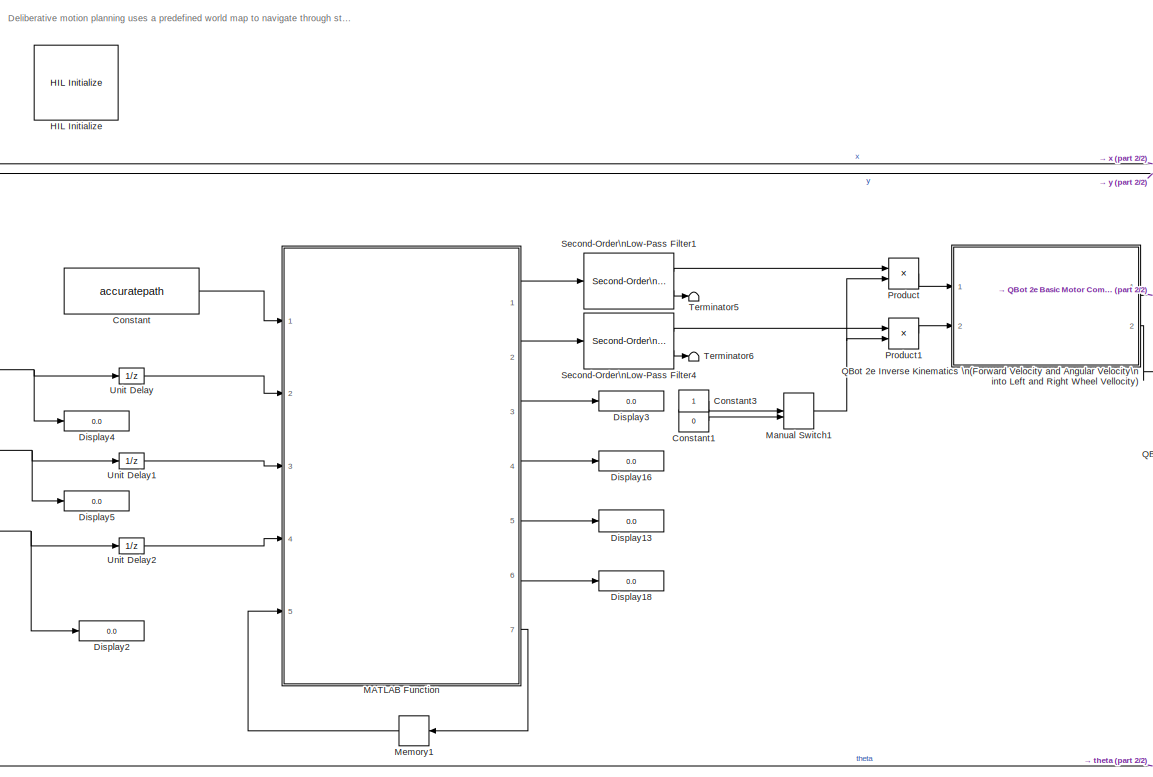
[diagram: root canvas - part 1/2, center side, full height]
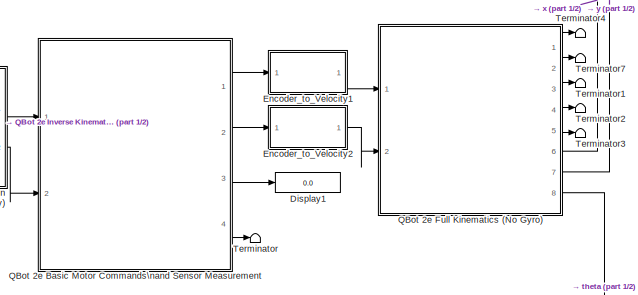
[diagram: root canvas - part 2/2, middle right region]
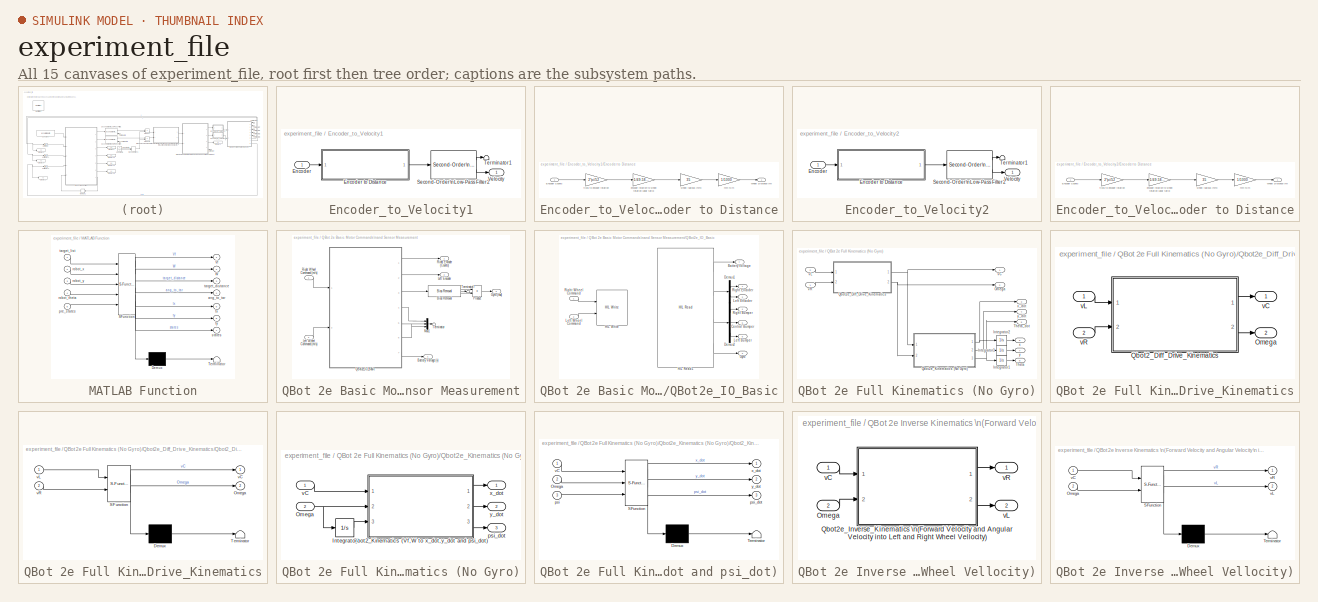
[diagram: thumbnail index - all 15 canvases of the model, root first then tree order]
MODEL experiment_file
KIND model
BLOCK [Constant] Constant
  SID = 679
  Value = accuratepath
BLOCK [Constant] Constant1
  SID = 412
  Value = 0
BLOCK [Constant] Constant3
  SID = 414
BLOCK [Display] Display1
  Ports = [1]
  SID = 416
BLOCK [Display] Display13
  Decimation = 1
  Ports = [1]
  SID = 554
BLOCK [Display] Display16
  Decimation = 1
  Ports = [1]
  SID = 555
BLOCK [Display] Display18
  Decimation = 1
  Ports = [1]
  SID = 556
BLOCK [Display] Display2
  Ports = [1]
  SID = 682
BLOCK [Display] Display3
  Decimation = 1
  Ports = [1]
  SID = 557
BLOCK [Display] Display4
  Ports = [1]
  SID = 683
BLOCK [Display] Display5
  Ports = [1]
  SID = 684
BLOCK [SubSystem] Encoder_to_Velocity1
  Ports = [1, 1]
  RequestExecContextInheritance = off
  SID = 427
BLOCK [Inport] Encoder_to_Velocity1/Encoder
  IconDisplay = Port number
  SID = 428
BLOCK [SubSystem] Encoder_to_Velocity1/Encoder to Distance
  Ports = [1, 1]
  RequestExecContextInheritance = off
  SID = 429
BLOCK [Gain] Encoder_to_Velocity1/Encoder to Distance/ encoder rotation to wheel rotation (gear ratio)
  Gain = 1/49.5833
  OutDataTypeStr = Inherit: Inherit via internal rule
  ParamDataTypeStr = Inherit: Inherit via internal rule
  SID = 431
  SaturateOnIntegerOverflow = off
BLOCK [Inport] Encoder_to_Velocity1/Encoder to Distance/Encoder Counts
  IconDisplay = Port number
  SID = 430
BLOCK [Outport] Encoder_to_Velocity1/Encoder to Distance/Wheel Distance (m)
  IconDisplay = Port number
  SID = 435
BLOCK [Gain] Encoder_to_Velocity1/Encoder to Distance/mm to m
  Gain = 1/1000
  OutDataTypeStr = Inherit: Inherit via internal rule
  ParamDataTypeStr = Inherit: Inherit via internal rule
  SID = 432
  SaturateOnIntegerOverflow = off
BLOCK [Gain] Encoder_to_Velocity1/Encoder to Distance/ticks to encoder rotation
  Gain = 2*pi/52
  OutDataTypeStr = Inherit: Inherit via internal rule
  ParamDataTypeStr = Inherit: Inherit via internal rule
  SID = 433
  SaturateOnIntegerOverflow = off
BLOCK [Gain] Encoder_to_Velocity1/Encoder to Distance/wheel radious (mm)
  Gain = 35
  OutDataTypeStr = Inherit: Inherit via internal rule
  ParamDataTypeStr = Inherit: Inherit via internal rule
  SID = 434
  SaturateOnIntegerOverflow = off
BLOCK [Reference] Encoder_to_Velocity1/Second-Order\nLow-Pass Filter2  REF=quarc_library/Continuous/Second-Order\nLow-Pass Filter
  Ports = [1, 2]
  SID = 436
  SourceBlock = quarc_library/Continuous/Second-Order\nLow-Pass Filter
  SourceProductName = QUARC Targets
  SourceType = Second-Order Low-Pass Filter
  input_init = 0
  input_width = 10
  input_zeta = 1
  params_source = Internal (dialog parameters)
BLOCK [Terminator] Encoder_to_Velocity1/Terminator1
  SID = 437
BLOCK [Outport] Encoder_to_Velocity1/Velocity
  IconDisplay = Port number
  SID = 438
BLOCK [SubSystem] Encoder_to_Velocity2
  Ports = [1, 1]
  RequestExecContextInheritance = off
  SID = 439
BLOCK [Inport] Encoder_to_Velocity2/Encoder
  IconDisplay = Port number
  SID = 440
BLOCK [SubSystem] Encoder_to_Velocity2/Encoder to Distance
  Ports = [1, 1]
  RequestExecContextInheritance = off
  SID = 441
BLOCK [Gain] Encoder_to_Velocity2/Encoder to Distance/ encoder rotation to wheel rotation (gear ratio)
  Gain = 1/49.5833
  OutDataTypeStr = Inherit: Inherit via internal rule
  ParamDataTypeStr = Inherit: Inherit via internal rule
  SID = 443
  SaturateOnIntegerOverflow = off
BLOCK [Inport] Encoder_to_Velocity2/Encoder to Distance/Encoder Counts
  IconDisplay = Port number
  SID = 442
BLOCK [Outport] Encoder_to_Velocity2/Encoder to Distance/Wheel Distance (m)
  IconDisplay = Port number
  SID = 447
BLOCK [Gain] Encoder_to_Velocity2/Encoder to Distance/mm to m
  Gain = 1/1000
  OutDataTypeStr = Inherit: Inherit via internal rule
  ParamDataTypeStr = Inherit: Inherit via internal rule
  SID = 444
  SaturateOnIntegerOverflow = off
BLOCK [Gain] Encoder_to_Velocity2/Encoder to Distance/ticks to encoder rotation
  Gain = 2*pi/52
  OutDataTypeStr = Inherit: Inherit via internal rule
  ParamDataTypeStr = Inherit: Inherit via internal rule
  SID = 445
  SaturateOnIntegerOverflow = off
BLOCK [Gain] Encoder_to_Velocity2/Encoder to Distance/wheel radious (mm)
  Gain = 35
  OutDataTypeStr = Inherit: Inherit via internal rule
  ParamDataTypeStr = Inherit: Inherit via internal rule
  SID = 446
  SaturateOnIntegerOverflow = off
BLOCK [Reference] Encoder_to_Velocity2/Second-Order\nLow-Pass Filter2  REF=quarc_library/Continuous/Second-Order\nLow-Pass Filter
  Ports = [1, 2]
  SID = 448
  SourceBlock = quarc_library/Continuous/Second-Order\nLow-Pass Filter
  SourceProductName = QUARC Targets
  SourceType = Second-Order Low-Pass Filter
  input_init = 0
  input_width = 10
  input_zeta = 1
  params_source = Internal (dialog parameters)
BLOCK [Terminator] Encoder_to_Velocity2/Terminator1
  SID = 449
BLOCK [Outport] Encoder_to_Velocity2/Velocity
  IconDisplay = Port number
  SID = 450
BLOCK [Reference] HIL Initialize  REF=quarc_library/Data Acquisition/Generic/Configuration/HIL Initialize
  AttributesFormatString = %<object_name> (%<board_type>-%<board_number>)
  MultiThreadCoSim = auto
  Ports = []
  Priority = -99
  SID = 367
  SourceBlock = quarc_library/Data Acquisition/Generic/Configuration/HIL Initialize
  SourceProductName = QUARC Targets
  SourceType = HIL Initialize
  UserData = DataTag0
  UserDataPersistent = on
  active = off
  analog_input_channels = [0:5]
  analog_input_configurations = []
  analog_input_maximums = [16.5 3.3 3.3 3.3 3.3 3.3]
  analog_input_minimums = [0 0 0 0 0 0]
  analog_output_channels = []
  analog_output_maximums = []
  analog_output_minimums = []
  board_number = 0
  board_options = pwm0_en=1;pwm0_pin=12;pwm1_en=1;pwm1_pin=13;
  board_type = qbot2e
  clock_modes = []
  digital_input_channels = [28:58]
  digital_output_channels = [28:31]
  digital_output_configuration = []
  encoder_channels = [0:1]
  encoder_filter_frequency = []
  exclusive = off
  final_analog_outputs = []
  final_digital_outputs = [0]
  final_other_outputs = [0 0 0 7]
  final_pwm_outputs = [0]
  hardware_clocks = []
  initial_analog_outputs = []
  initial_clock_frequencies = []
  initial_digital_outputs = [0]
  initial_encoder_counts = [0]
  initial_other_outputs = [0 0 0 7]
  initial_pwm_outputs = [0]
  object_name = HIL-1
  other_output_channels = [2000:2001 14000 16000]
  pwm_alignment = [0]
  pwm_channels = [0:1]
  pwm_configuration = [0]
  pwm_frequency = 100e6 / 4095
  pwm_leading_deadband = []
  pwm_modes = 0
  pwm_polarity = [1]
  pwm_trailing_deadband = []
  quadrature = [4]
  set_analog_input_params_at_start = off
  set_analog_input_params_at_switch_in = off
  set_analog_output_params_at_start = off
  set_analog_output_params_at_switch_in = off
  set_analog_outputs_at_start = off
  set_analog_outputs_at_switch_in = off
  set_analog_outputs_at_switch_out = off
  set_analog_outputs_at_terminate = off
  set_analog_outputs_on_watchdog = off
  set_clock_frequencies_at_start = off
  set_clock_frequencies_at_switch_in = off
  set_clock_params_at_start = off
  set_clock_params_at_switch_in = off
  set_digital_output_params_at_start = off
  set_digital_output_params_at_switch_in = off
  set_digital_outputs_at_start = on
  set_digital_outputs_at_switch_in = off
  set_digital_outputs_at_switch_out = off
  set_digital_outputs_at_terminate = on
  set_digital_outputs_on_watchdog = off
  set_encoder_counts_at_start = on
  set_encoder_counts_at_switch_in = off
  set_encoder_params_at_start = on
  set_encoder_params_at_switch_in = off
  set_other_outputs_at_start = on
  set_other_outputs_at_switch_in = off
  set_other_outputs_at_switch_out = off
  set_other_outputs_at_terminate = on
  set_other_outputs_on_watchdog = off
  set_pwm_outputs_at_start = on
  set_pwm_outputs_at_switch_in = off
  set_pwm_outputs_at_switch_out = off
  set_pwm_outputs_at_terminate = on
  set_pwm_outputs_on_watchdog = off
  set_pwm_params_at_start = on
  set_pwm_params_at_switch_in = off
  watchdog_analog_outputs = []
  watchdog_digital_outputs = []
  watchdog_other_outputs = []
  watchdog_pwm_outputs = []
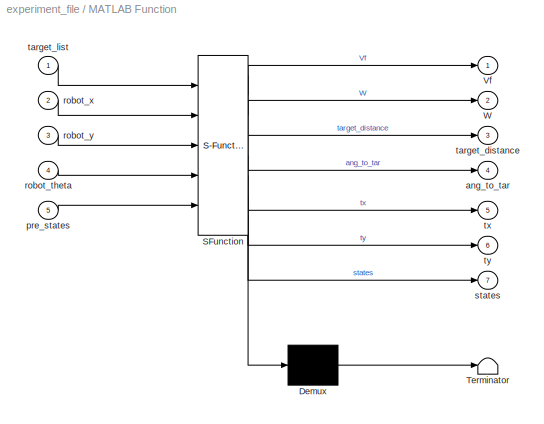
BLOCK [SubSystem] MATLAB Function
  ErrorFcn = Stateflow.Translate.translate
  PermitHierarchicalResolution = ExplicitOnly
  Ports = [5, 7]
  RequestExecContextInheritance = off
  SFBlockType = MATLAB Function
  SID = 676
  TreatAsAtomicUnit = on
BLOCK [Demux] MATLAB Function/ Demux 
  Outputs = 1
  Ports = [1, 1]
  SID = 676::32
BLOCK [S-Function] MATLAB Function/ SFunction 
  EnableBusSupport = on
  FunctionName = sf_sfun
  PortCounts = [5 8]
  Ports = [5, 8]
  SFcnIsStateOwnerBlock = off
  SFunctionDeploymentMode = off
  SID = 676::31
  Tag = Stateflow S-Function experiment_file 4
BLOCK [Terminator] MATLAB Function/ Terminator 
  SID = 676::33
BLOCK [Outport] MATLAB Function/Vf
  IconDisplay = Port number
  SID = 676::5
BLOCK [Outport] MATLAB Function/W
  IconDisplay = Port number
  Port = 2
  SID = 676::23
BLOCK [Outport] MATLAB Function/ang_to_tar
  IconDisplay = Port number
  Port = 4
  SID = 676::25
BLOCK [Inport] MATLAB Function/pre_states
  IconDisplay = Port number
  Port = 5
  SID = 676::22
BLOCK [Inport] MATLAB Function/robot_theta
  IconDisplay = Port number
  Port = 4
  SID = 676::29
BLOCK [Inport] MATLAB Function/robot_x
  IconDisplay = Port number
  Port = 2
  SID = 676::21
BLOCK [Inport] MATLAB Function/robot_y
  IconDisplay = Port number
  Port = 3
  SID = 676::28
BLOCK [Outport] MATLAB Function/states
  IconDisplay = Port number
  Port = 7
  SID = 676::27
BLOCK [Outport] MATLAB Function/target_distance
  IconDisplay = Port number
  Port = 3
  SID = 676::24
BLOCK [Inport] MATLAB Function/target_list
  IconDisplay = Port number
  SID = 676::1
BLOCK [Outport] MATLAB Function/tx
  IconDisplay = Port number
  Port = 5
  SID = 676::26
BLOCK [Outport] MATLAB Function/ty
  IconDisplay = Port number
  Port = 6
  SID = 676::30
BLOCK [ManualSwitch] Manual Switch1
  SID = 681
BLOCK [Memory] Memory1
  InitialCondition = [1]
  SID = 678
BLOCK [Product] Product
  InputSameDT = off
  OutDataTypeStr = Inherit: Inherit via internal rule
  Ports = [2, 1]
  SID = 458
  SaturateOnIntegerOverflow = off
BLOCK [Product] Product1
  InputSameDT = off
  OutDataTypeStr = Inherit: Inherit via internal rule
  Ports = [2, 1]
  SID = 459
  SaturateOnIntegerOverflow = off
BLOCK [SubSystem] QBot 2e Basic Motor Commands\nand Sensor Measurement
  Ports = [2, 4]
  RequestExecContextInheritance = off
  SID = 629
BLOCK [Outport] QBot 2e Basic Motor Commands\nand Sensor Measurement/Battery Voltage (v)
  IconDisplay = Port number
  Port = 4
  SID = 654
BLOCK [Reference] QBot 2e Basic Motor Commands\nand Sensor Measurement/Bias Removal  REF=quarc_library/Discrete/Bias Removal
  Ports = [1, 3]
  SID = 632
  SourceBlock = quarc_library/Discrete/Bias Removal
  SourceProductName = QUARC Targets
  SourceType = Bias Removal
  end_time = 4
  sample_time = qc_get_step_size
  start_time = 3
  switch_id = 0
BLOCK [Outport] QBot 2e Basic Motor Commands\nand Sensor Measurement/Gyro (rad)
  IconDisplay = Port number
  Port = 3
  SID = 653
BLOCK [Outport] QBot 2e Basic Motor Commands\nand Sensor Measurement/Left Encoder
  IconDisplay = Port number
  Port = 2
  SID = 652
BLOCK [Inport] QBot 2e Basic Motor Commands\nand Sensor Measurement/Left Wheel Command (m//s)
  IconDisplay = Port number
  Port = 2
  SID = 631
BLOCK [Mux] QBot 2e Basic Motor Commands\nand Sensor Measurement/Mux1
  DisplayOption = bar
  Inputs = 3
  Ports = [3, 1]
  SID = 633
BLOCK [Product] QBot 2e Basic Motor Commands\nand Sensor Measurement/Product
  InputSameDT = off
  OutDataTypeStr = Inherit: Inherit via internal rule
  Ports = [2, 1]
  SID = 634
  SaturateOnIntegerOverflow = off
BLOCK [SubSystem] QBot 2e Basic Motor Commands\nand Sensor Measurement/QBot2e_IO_Basic
  Ports = [2, 7]
  RequestExecContextInheritance = off
  SID = 635
BLOCK [Outport] QBot 2e Basic Motor Commands\nand Sensor Measurement/QBot2e_IO_Basic/Battery Voltage
  IconDisplay = Port number
  Port = 7
  SID = 648
BLOCK [Outport] QBot 2e Basic Motor Commands\nand Sensor Measurement/QBot2e_IO_Basic/Central Bumper
  IconDisplay = Port number
  Port = 5
  SID = 646
BLOCK [Demux] QBot 2e Basic Motor Commands\nand Sensor Measurement/QBot2e_IO_Basic/Demux1
  DisplayOption = bar
  Outputs = 2
  Ports = [1, 2]
  SID = 638
BLOCK [Demux] QBot 2e Basic Motor Commands\nand Sensor Measurement/QBot2e_IO_Basic/Demux2
  DisplayOption = bar
  Outputs = 3
  Ports = [1, 3]
  SID = 639
BLOCK [Outport] QBot 2e Basic Motor Commands\nand Sensor Measurement/QBot2e_IO_Basic/Gyro
  IconDisplay = Port number
  Port = 3
  SID = 644
BLOCK [Reference] QBot 2e Basic Motor Commands\nand Sensor Measurement/QBot2e_IO_Basic/HIL Read1  REF=quarc_library/Data Acquisition/Generic/Immediate I//O/HIL Read
  AttributesFormatString = (%<object_name>)
  MultiThreadCoSim = auto
  Ports = [0, 4]
  SID = 640
  SourceBlock = quarc_library/Data Acquisition/Generic/Immediate I//O/HIL Read
  SourceProductName = QUARC Targets
  SourceType = HIL Read
  UserData = DataTag1
  UserDataPersistent = on
  active = on
  analog_channels = [0]
  data_type_mode = Inherit via back propagation
  digital_channels = [28:30]
  digital_data_type = boolean
  encoder_channels = [0:1]
  encoder_data_type = double
  object_name = HIL-1
  other_channels = [1002]
  sample_time = qc_get_step_size
  vector_output = on
BLOCK [Reference] QBot 2e Basic Motor Commands\nand Sensor Measurement/QBot2e_IO_Basic/HIL Write  REF=quarc_library/Data Acquisition/Generic/Immediate I//O/HIL Write
  AttributesFormatString = (%<object_name>)
  MultiThreadCoSim = auto
  Ports = [2]
  SID = 641
  SourceBlock = quarc_library/Data Acquisition/Generic/Immediate I//O/HIL Write
  SourceProductName = QUARC Targets
  SourceType = HIL Write
  UserData = DataTag2
  UserDataPersistent = on
  active = on
  analog_channels = []
  digital_channels = []
  object_name = HIL-1
  other_channels = [2000:2001]
  pwm_channels = []
  sample_time = -1
  vector_input = off
BLOCK [Outport] QBot 2e Basic Motor Commands\nand Sensor Measurement/QBot2e_IO_Basic/Left Bumper
  IconDisplay = Port number
  Port = 6
  SID = 647
BLOCK [Outport] QBot 2e Basic Motor Commands\nand Sensor Measurement/QBot2e_IO_Basic/Left Encoder
  IconDisplay = Port number
  Port = 2
  SID = 643
BLOCK [Inport] QBot 2e Basic Motor Commands\nand Sensor Measurement/QBot2e_IO_Basic/Left Wheel Command
  IconDisplay = Port number
  Port = 2
  SID = 637
BLOCK [Outport] QBot 2e Basic Motor Commands\nand Sensor Measurement/QBot2e_IO_Basic/Right Bumper
  IconDisplay = Port number
  Port = 4
  SID = 645
BLOCK [Outport] QBot 2e Basic Motor Commands\nand Sensor Measurement/QBot2e_IO_Basic/Right Encoder
  IconDisplay = Port number
  SID = 642
BLOCK [Inport] QBot 2e Basic Motor Commands\nand Sensor Measurement/QBot2e_IO_Basic/Right Wheel Command
  IconDisplay = Port number
  SID = 636
BLOCK [Outport] QBot 2e Basic Motor Commands\nand Sensor Measurement/Right Encoder (Counts)
  IconDisplay = Port number
  SID = 651
BLOCK [Inport] QBot 2e Basic Motor Commands\nand Sensor Measurement/Right Wheel Command (m//s)
  IconDisplay = Port number
  SID = 630
BLOCK [Terminator] QBot 2e Basic Motor Commands\nand Sensor Measurement/Terminator
  SID = 649
BLOCK [Terminator] QBot 2e Basic Motor Commands\nand Sensor Measurement/Terminator7
  SID = 650
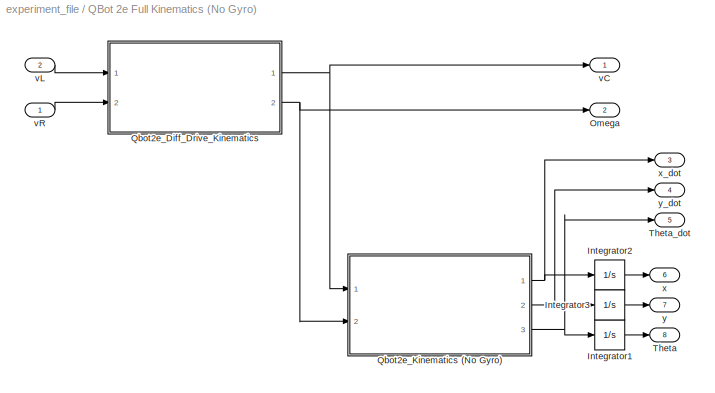
BLOCK [SubSystem] QBot 2e Full Kinematics (No Gyro)
  Ports = [2, 8]
  RequestExecContextInheritance = off
  SID = 486
BLOCK [Integrator] QBot 2e Full Kinematics (No Gyro)/Integrator1
  Ports = [1, 1]
  SID = 489
BLOCK [Integrator] QBot 2e Full Kinematics (No Gyro)/Integrator2
  InitialCondition = 0.28
  Ports = [1, 1]
  SID = 490
BLOCK [Integrator] QBot 2e Full Kinematics (No Gyro)/Integrator3
  InitialCondition = 0.28
  Ports = [1, 1]
  SID = 491
BLOCK [Outport] QBot 2e Full Kinematics (No Gyro)/Omega
  IconDisplay = Port number
  Port = 2
  SID = 507
BLOCK [SubSystem] QBot 2e Full Kinematics (No Gyro)/Qbot2e_Diff_Drive_Kinematics
  Ports = [2, 2]
  RequestExecContextInheritance = off
  SID = 492
BLOCK [Outport] QBot 2e Full Kinematics (No Gyro)/Qbot2e_Diff_Drive_Kinematics/Omega
  IconDisplay = Port number
  Port = 2
  SID = 497
BLOCK [SubSystem] QBot 2e Full Kinematics (No Gyro)/Qbot2e_Diff_Drive_Kinematics/Qbot2_Diff_Drive_Kinematics
  ErrorFcn = Stateflow.Translate.translate
  PermitHierarchicalResolution = ExplicitOnly
  Ports = [2, 2]
  RequestExecContextInheritance = off
  SFBlockType = MATLAB Function
  SID = 495
  TreatAsAtomicUnit = on
BLOCK [Demux] QBot 2e Full Kinematics (No Gyro)/Qbot2e_Diff_Drive_Kinematics/Qbot2_Diff_Drive_Kinematics/ Demux 
  Outputs = 1
  Ports = [1, 1]
  SID = 495::50
BLOCK [S-Function] QBot 2e Full Kinematics (No Gyro)/Qbot2e_Diff_Drive_Kinematics/Qbot2_Diff_Drive_Kinematics/ SFunction 
  EnableBusSupport = on
  FunctionName = sf_sfun
  PortCounts = [2 3]
  Ports = [2, 3]
  SFcnIsStateOwnerBlock = off
  SFunctionDeploymentMode = off
  SID = 495::49
  Tag = Stateflow S-Function experiment_file 2
BLOCK [Terminator] QBot 2e Full Kinematics (No Gyro)/Qbot2e_Diff_Drive_Kinematics/Qbot2_Diff_Drive_Kinematics/ Terminator 
  SID = 495::51
BLOCK [Outport] QBot 2e Full Kinematics (No Gyro)/Qbot2e_Diff_Drive_Kinematics/Qbot2_Diff_Drive_Kinematics/Omega
  IconDisplay = Port number
  Port = 2
  SID = 495::19
BLOCK [Outport] QBot 2e Full Kinematics (No Gyro)/Qbot2e_Diff_Drive_Kinematics/Qbot2_Diff_Drive_Kinematics/vC
  IconDisplay = Port number
  SID = 495::5
BLOCK [Inport] QBot 2e Full Kinematics (No Gyro)/Qbot2e_Diff_Drive_Kinematics/Qbot2_Diff_Drive_Kinematics/vL
  IconDisplay = Port number
  SID = 495::1
BLOCK [Inport] QBot 2e Full Kinematics (No Gyro)/Qbot2e_Diff_Drive_Kinematics/Qbot2_Diff_Drive_Kinematics/vR
  IconDisplay = Port number
  Port = 2
  SID = 495::18
BLOCK [Outport] QBot 2e Full Kinematics (No Gyro)/Qbot2e_Diff_Drive_Kinematics/vC
  IconDisplay = Port number
  SID = 496
BLOCK [Inport] QBot 2e Full Kinematics (No Gyro)/Qbot2e_Diff_Drive_Kinematics/vL
  IconDisplay = Port number
  SID = 493
BLOCK [Inport] QBot 2e Full Kinematics (No Gyro)/Qbot2e_Diff_Drive_Kinematics/vR
  IconDisplay = Port number
  Port = 2
  SID = 494
BLOCK [SubSystem] QBot 2e Full Kinematics (No Gyro)/Qbot2e_Kinematics (No Gyro)
  Ports = [2, 3]
  RequestExecContextInheritance = off
  SID = 498
BLOCK [Integrator] QBot 2e Full Kinematics (No Gyro)/Qbot2e_Kinematics (No Gyro)/Integrator
  Ports = [1, 1]
  SID = 501
BLOCK [Inport] QBot 2e Full Kinematics (No Gyro)/Qbot2e_Kinematics (No Gyro)/Omega
  IconDisplay = Port number
  Port = 2
  SID = 500
BLOCK [SubSystem] QBot 2e Full Kinematics (No Gyro)/Qbot2e_Kinematics (No Gyro)/Qbot2_Kinematics (Vf,W to x_dot,y_dot and psi_dot)
  ErrorFcn = Stateflow.Translate.translate
  PermitHierarchicalResolution = ExplicitOnly
  Ports = [3, 3]
  RequestExecContextInheritance = off
  SFBlockType = MATLAB Function
  SID = 502
  TreatAsAtomicUnit = on
BLOCK [Demux] QBot 2e Full Kinematics (No Gyro)/Qbot2e_Kinematics (No Gyro)/Qbot2_Kinematics (Vf,W to x_dot,y_dot and psi_dot)/ Demux 
  Outputs = 1
  Ports = [1, 1]
  SID = 502::52
BLOCK [S-Function] QBot 2e Full Kinematics (No Gyro)/Qbot2e_Kinematics (No Gyro)/Qbot2_Kinematics (Vf,W to x_dot,y_dot and psi_dot)/ SFunction 
  EnableBusSupport = on
  FunctionName = sf_sfun
  PortCounts = [3 4]
  Ports = [3, 4]
  SFcnIsStateOwnerBlock = off
  SFunctionDeploymentMode = off
  SID = 502::51
  Tag = Stateflow S-Function experiment_file 3
BLOCK [Terminator] QBot 2e Full Kinematics (No Gyro)/Qbot2e_Kinematics (No Gyro)/Qbot2_Kinematics (Vf,W to x_dot,y_dot and psi_dot)/ Terminator 
  SID = 502::53
BLOCK [Inport] QBot 2e Full Kinematics (No Gyro)/Qbot2e_Kinematics (No Gyro)/Qbot2_Kinematics (Vf,W to x_dot,y_dot and psi_dot)/Omega
  IconDisplay = Port number
  Port = 2
  SID = 502::18
BLOCK [Inport] QBot 2e Full Kinematics (No Gyro)/Qbot2e_Kinematics (No Gyro)/Qbot2_Kinematics (Vf,W to x_dot,y_dot and psi_dot)/psi
  IconDisplay = Port number
  Port = 3
  SID = 502::33
BLOCK [Outport] QBot 2e Full Kinematics (No Gyro)/Qbot2e_Kinematics (No Gyro)/Qbot2_Kinematics (Vf,W to x_dot,y_dot and psi_dot)/psi_dot
  IconDisplay = Port number
  Port = 3
  SID = 502::34
BLOCK [Inport] QBot 2e Full Kinematics (No Gyro)/Qbot2e_Kinematics (No Gyro)/Qbot2_Kinematics (Vf,W to x_dot,y_dot and psi_dot)/vC
  IconDisplay = Port number
  SID = 502::1
BLOCK [Outport] QBot 2e Full Kinematics (No Gyro)/Qbot2e_Kinematics (No Gyro)/Qbot2_Kinematics (Vf,W to x_dot,y_dot and psi_dot)/x_dot
  IconDisplay = Port number
  SID = 502::5
BLOCK [Outport] QBot 2e Full Kinematics (No Gyro)/Qbot2e_Kinematics (No Gyro)/Qbot2_Kinematics (Vf,W to x_dot,y_dot and psi_dot)/y_dot
  IconDisplay = Port number
  Port = 2
  SID = 502::19
BLOCK [Outport] QBot 2e Full Kinematics (No Gyro)/Qbot2e_Kinematics (No Gyro)/psi_dot
  IconDisplay = Port number
  Port = 3
  SID = 505
BLOCK [Inport] QBot 2e Full Kinematics (No Gyro)/Qbot2e_Kinematics (No Gyro)/vC
  IconDisplay = Port number
  SID = 499
BLOCK [Outport] QBot 2e Full Kinematics (No Gyro)/Qbot2e_Kinematics (No Gyro)/x_dot
  IconDisplay = Port number
  SID = 503
BLOCK [Outport] QBot 2e Full Kinematics (No Gyro)/Qbot2e_Kinematics (No Gyro)/y_dot
  IconDisplay = Port number
  Port = 2
  SID = 504
BLOCK [Outport] QBot 2e Full Kinematics (No Gyro)/Theta
  IconDisplay = Port number
  Port = 8
  SID = 513
BLOCK [Outport] QBot 2e Full Kinematics (No Gyro)/Theta_dot
  IconDisplay = Port number
  Port = 5
  SID = 510
BLOCK [Outport] QBot 2e Full Kinematics (No Gyro)/vC
  IconDisplay = Port number
  SID = 506
BLOCK [Inport] QBot 2e Full Kinematics (No Gyro)/vL
  IconDisplay = Port number
  Port = 2
  SID = 488
BLOCK [Inport] QBot 2e Full Kinematics (No Gyro)/vR
  IconDisplay = Port number
  SID = 487
BLOCK [Outport] QBot 2e Full Kinematics (No Gyro)/x
  IconDisplay = Port number
  Port = 6
  SID = 511
BLOCK [Outport] QBot 2e Full Kinematics (No Gyro)/x_dot
  IconDisplay = Port number
  Port = 3
  SID = 508
BLOCK [Outport] QBot 2e Full Kinematics (No Gyro)/y
  IconDisplay = Port number
  Port = 7
  SID = 512
BLOCK [Outport] QBot 2e Full Kinematics (No Gyro)/y_dot
  IconDisplay = Port number
  Port = 4
  SID = 509
BLOCK [SubSystem] QBot 2e Inverse Kinematics \n(Forward Velocity and Angular Velocity\n into Left and Right Wheel Vellocity)
  Ports = [2, 2]
  RequestExecContextInheritance = off
  SID = 514
BLOCK [Inport] QBot 2e Inverse Kinematics \n(Forward Velocity and Angular Velocity\n into Left and Right Wheel Vellocity)/Omega
  IconDisplay = Port number
  Port = 2
  SID = 516
BLOCK [SubSystem] QBot 2e Inverse Kinematics \n(Forward Velocity and Angular Velocity\n into Left and Right Wheel Vellocity)/Qbot2e_Inverse_Kinematics \n(Forward Velocity and Angular Velocity into Left and Right Wheel Vellocity)
  ErrorFcn = Stateflow.Translate.translate
  PermitHierarchicalResolution = ExplicitOnly
  Ports = [2, 2]
  RequestExecContextInheritance = off
  SFBlockType = MATLAB Function
  SID = 517
  TreatAsAtomicUnit = on
BLOCK [Demux] QBot 2e Inverse Kinematics \n(Forward Velocity and Angular Velocity\n into Left and Right Wheel Vellocity)/Qbot2e_Inverse_Kinematics \n(Forward Velocity and Angular Velocity into Left and Right Wheel Vellocity)/ Demux 
  Outputs = 1
  Ports = [1, 1]
  SID = 517::49
BLOCK [S-Function] QBot 2e Inverse Kinematics \n(Forward Velocity and Angular Velocity\n into Left and Right Wheel Vellocity)/Qbot2e_Inverse_Kinematics \n(Forward Velocity and Angular Velocity into Left and Right Wheel Vellocity)/ SFunction 
  EnableBusSupport = on
  FunctionName = sf_sfun
  PortCounts = [2 3]
  Ports = [2, 3]
  SFcnIsStateOwnerBlock = off
  SFunctionDeploymentMode = off
  SID = 517::48
  Tag = Stateflow S-Function experiment_file 10
BLOCK [Terminator] QBot 2e Inverse Kinematics \n(Forward Velocity and Angular Velocity\n into Left and Right Wheel Vellocity)/Qbot2e_Inverse_Kinematics \n(Forward Velocity and Angular Velocity into Left and Right Wheel Vellocity)/ Terminator 
  SID = 517::50
BLOCK [Inport] QBot 2e Inverse Kinematics \n(Forward Velocity and Angular Velocity\n into Left and Right Wheel Vellocity)/Qbot2e_Inverse_Kinematics \n(Forward Velocity and Angular Velocity into Left and Right Wheel Vellocity)/Omega
  IconDisplay = Port number
  Port = 2
  SID = 517::23
BLOCK [Inport] QBot 2e Inverse Kinematics \n(Forward Velocity and Angular Velocity\n into Left and Right Wheel Vellocity)/Qbot2e_Inverse_Kinematics \n(Forward Velocity and Angular Velocity into Left and Right Wheel Vellocity)/vC
  IconDisplay = Port number
  SID = 517::20
BLOCK [Outport] QBot 2e Inverse Kinematics \n(Forward Velocity and Angular Velocity\n into Left and Right Wheel Vellocity)/Qbot2e_Inverse_Kinematics \n(Forward Velocity and Angular Velocity into Left and Right Wheel Vellocity)/vL
  IconDisplay = Port number
  Port = 2
  SID = 517::22
BLOCK [Outport] QBot 2e Inverse Kinematics \n(Forward Velocity and Angular Velocity\n into Left and Right Wheel Vellocity)/Qbot2e_Inverse_Kinematics \n(Forward Velocity and Angular Velocity into Left and Right Wheel Vellocity)/vR
  IconDisplay = Port number
  SID = 517::21
BLOCK [Inport] QBot 2e Inverse Kinematics \n(Forward Velocity and Angular Velocity\n into Left and Right Wheel Vellocity)/vC
  IconDisplay = Port number
  SID = 515
BLOCK [Outport] QBot 2e Inverse Kinematics \n(Forward Velocity and Angular Velocity\n into Left and Right Wheel Vellocity)/vL
  IconDisplay = Port number
  Port = 2
  SID = 519
BLOCK [Outport] QBot 2e Inverse Kinematics \n(Forward Velocity and Angular Velocity\n into Left and Right Wheel Vellocity)/vR
  IconDisplay = Port number
  SID = 518
BLOCK [Reference] Second-Order\nLow-Pass Filter1  REF=quarc_library/Continuous/Second-Order\nLow-Pass Filter
  Ports = [1, 2]
  SID = 564
  SourceBlock = quarc_library/Continuous/Second-Order\nLow-Pass Filter
  SourceProductName = QUARC Targets
  SourceType = Second-Order Low-Pass Filter
  input_init = 0
  input_width = 30
  input_zeta = 1
  params_source = Internal (dialog parameters)
BLOCK [Reference] Second-Order\nLow-Pass Filter4  REF=quarc_library/Continuous/Second-Order\nLow-Pass Filter
  Ports = [1, 2]
  SID = 565
  SourceBlock = quarc_library/Continuous/Second-Order\nLow-Pass Filter
  SourceProductName = QUARC Targets
  SourceType = Second-Order Low-Pass Filter
  input_init = 0
  input_width = 60
  input_zeta = 1
  params_source = Internal (dialog parameters)
BLOCK [Terminator] Terminator
  SID = 602
BLOCK [Terminator] Terminator1
  SID = 540
BLOCK [Terminator] Terminator2
  SID = 541
BLOCK [Terminator] Terminator3
  SID = 542
BLOCK [Terminator] Terminator4
  SID = 599
BLOCK [Terminator] Terminator5
  SID = 593
BLOCK [Terminator] Terminator6
  SID = 594
BLOCK [Terminator] Terminator7
  SID = 600
BLOCK [UnitDelay] Unit Delay
  HasFrameUpgradeWarning = on
  SID = 567
  SampleTime = -1
BLOCK [UnitDelay] Unit Delay1
  HasFrameUpgradeWarning = on
  SID = 568
  SampleTime = -1
BLOCK [UnitDelay] Unit Delay2
  HasFrameUpgradeWarning = on
  SID = 569
  SampleTime = -1
ANNOTATION (root): \n \n Deliberative motion planning uses a predefined world map to navigate through static obstacles. \n \n Required: \n 1-Occupancy Grid Map of the environment \n MATLAB codes are Process_MAP and Path_Planning_MAP using: \n a) potential fields \n b) A*
LINE Constant1:1 -> Manual Switch1:2
LINE Constant3:1 -> Manual Switch1:1
LINE Constant:1 -> MATLAB Function:1
LINE Encoder_to_Velocity1/Encoder to Distance/ encoder rotation to wheel rotation (gear ratio):1 -> Encoder_to_Velocity1/Encoder to Distance/wheel radious (mm):1
LINE Encoder_to_Velocity1/Encoder to Distance/Encoder Counts:1 -> Encoder_to_Velocity1/Encoder to Distance/ticks to encoder rotation:1
LINE Encoder_to_Velocity1/Encoder to Distance/mm to m:1 -> Encoder_to_Velocity1/Encoder to Distance/Wheel Distance (m):1
LINE Encoder_to_Velocity1/Encoder to Distance/ticks to encoder rotation:1 -> Encoder_to_Velocity1/Encoder to Distance/ encoder rotation to wheel rotation (gear ratio):1
LINE Encoder_to_Velocity1/Encoder to Distance/wheel radious (mm):1 -> Encoder_to_Velocity1/Encoder to Distance/mm to m:1
LINE Encoder_to_Velocity1/Encoder to Distance:1 -> Encoder_to_Velocity1/Second-Order\nLow-Pass Filter2:1
LINE Encoder_to_Velocity1/Encoder:1 -> Encoder_to_Velocity1/Encoder to Distance:1
LINE Encoder_to_Velocity1/Second-Order\nLow-Pass Filter2:1 -> Encoder_to_Velocity1/Terminator1:1
LINE Encoder_to_Velocity1/Second-Order\nLow-Pass Filter2:2 -> Encoder_to_Velocity1/Velocity:1
LINE Encoder_to_Velocity1:1 -> QBot 2e Full Kinematics (No Gyro):1
LINE Encoder_to_Velocity2/Encoder to Distance/ encoder rotation to wheel rotation (gear ratio):1 -> Encoder_to_Velocity2/Encoder to Distance/wheel radious (mm):1
LINE Encoder_to_Velocity2/Encoder to Distance/Encoder Counts:1 -> Encoder_to_Velocity2/Encoder to Distance/ticks to encoder rotation:1
LINE Encoder_to_Velocity2/Encoder to Distance/mm to m:1 -> Encoder_to_Velocity2/Encoder to Distance/Wheel Distance (m):1
LINE Encoder_to_Velocity2/Encoder to Distance/ticks to encoder rotation:1 -> Encoder_to_Velocity2/Encoder to Distance/ encoder rotation to wheel rotation (gear ratio):1
LINE Encoder_to_Velocity2/Encoder to Distance/wheel radious (mm):1 -> Encoder_to_Velocity2/Encoder to Distance/mm to m:1
LINE Encoder_to_Velocity2/Encoder to Distance:1 -> Encoder_to_Velocity2/Second-Order\nLow-Pass Filter2:1
LINE Encoder_to_Velocity2/Encoder:1 -> Encoder_to_Velocity2/Encoder to Distance:1
LINE Encoder_to_Velocity2/Second-Order\nLow-Pass Filter2:1 -> Encoder_to_Velocity2/Terminator1:1
LINE Encoder_to_Velocity2/Second-Order\nLow-Pass Filter2:2 -> Encoder_to_Velocity2/Velocity:1
LINE Encoder_to_Velocity2:1 -> QBot 2e Full Kinematics (No Gyro):2
LINE MATLAB Function/ Demux :1 -> MATLAB Function/ Terminator :1
LINE MATLAB Function/ SFunction :1 -> MATLAB Function/ Demux :1
LINE MATLAB Function/ SFunction :2 -> MATLAB Function/Vf:1
LINE MATLAB Function/ SFunction :3 -> MATLAB Function/W:1
LINE MATLAB Function/ SFunction :4 -> MATLAB Function/target_distance:1
LINE MATLAB Function/ SFunction :5 -> MATLAB Function/ang_to_tar:1
LINE MATLAB Function/ SFunction :6 -> MATLAB Function/tx:1
LINE MATLAB Function/ SFunction :7 -> MATLAB Function/ty:1
LINE MATLAB Function/ SFunction :8 -> MATLAB Function/states:1
LINE MATLAB Function/pre_states:1 -> MATLAB Function/ SFunction :5
LINE MATLAB Function/robot_theta:1 -> MATLAB Function/ SFunction :4
LINE MATLAB Function/robot_x:1 -> MATLAB Function/ SFunction :2
LINE MATLAB Function/robot_y:1 -> MATLAB Function/ SFunction :3
LINE MATLAB Function/target_list:1 -> MATLAB Function/ SFunction :1
LINE MATLAB Function:1 -> Second-Order\nLow-Pass Filter1:1
LINE MATLAB Function:2 -> Second-Order\nLow-Pass Filter4:1
LINE MATLAB Function:3 -> Display3:1
LINE MATLAB Function:4 -> Display16:1
LINE MATLAB Function:5 -> Display13:1
LINE MATLAB Function:6 -> Display18:1
LINE MATLAB Function:7 -> Memory1:1
NET Manual Switch1:1 -> Product1:2, Product:2
LINE Memory1:1 -> MATLAB Function:5
LINE Product1:1 -> QBot 2e Inverse Kinematics \n(Forward Velocity and Angular Velocity\n into Left and Right Wheel Vellocity):2
LINE Product:1 -> QBot 2e Inverse Kinematics \n(Forward Velocity and Angular Velocity\n into Left and Right Wheel Vellocity):1
LINE QBot 2e Basic Motor Commands\nand Sensor Measurement/Bias Removal:1 -> QBot 2e Basic Motor Commands\nand Sensor Measurement/Product:1
LINE QBot 2e Basic Motor Commands\nand Sensor Measurement/Bias Removal:2 -> QBot 2e Basic Motor Commands\nand Sensor Measurement/Terminator7:1
LINE QBot 2e Basic Motor Commands\nand Sensor Measurement/Bias Removal:3 -> QBot 2e Basic Motor Commands\nand Sensor Measurement/Product:2
LINE QBot 2e Basic Motor Commands\nand Sensor Measurement/Left Wheel Command (m//s):1 -> QBot 2e Basic Motor Commands\nand Sensor Measurement/QBot2e_IO_Basic:2
LINE QBot 2e Basic Motor Commands\nand Sensor Measurement/Mux1:1 -> QBot 2e Basic Motor Commands\nand Sensor Measurement/Terminator:1
LINE QBot 2e Basic Motor Commands\nand Sensor Measurement/Product:1 -> QBot 2e Basic Motor Commands\nand Sensor Measurement/Gyro (rad):1
LINE QBot 2e Basic Motor Commands\nand Sensor Measurement/QBot2e_IO_Basic/Demux1:1 -> QBot 2e Basic Motor Commands\nand Sensor Measurement/QBot2e_IO_Basic/Right Encoder:1
LINE QBot 2e Basic Motor Commands\nand Sensor Measurement/QBot2e_IO_Basic/Demux1:2 -> QBot 2e Basic Motor Commands\nand Sensor Measurement/QBot2e_IO_Basic/Left Encoder:1
LINE QBot 2e Basic Motor Commands\nand Sensor Measurement/QBot2e_IO_Basic/Demux2:1 -> QBot 2e Basic Motor Commands\nand Sensor Measurement/QBot2e_IO_Basic/Right Bumper:1
LINE QBot 2e Basic Motor Commands\nand Sensor Measurement/QBot2e_IO_Basic/Demux2:2 -> QBot 2e Basic Motor Commands\nand Sensor Measurement/QBot2e_IO_Basic/Central Bumper:1
LINE QBot 2e Basic Motor Commands\nand Sensor Measurement/QBot2e_IO_Basic/Demux2:3 -> QBot 2e Basic Motor Commands\nand Sensor Measurement/QBot2e_IO_Basic/Left Bumper:1
LINE QBot 2e Basic Motor Commands\nand Sensor Measurement/QBot2e_IO_Basic/HIL Read1:1 -> QBot 2e Basic Motor Commands\nand Sensor Measurement/QBot2e_IO_Basic/Battery Voltage:1
LINE QBot 2e Basic Motor Commands\nand Sensor Measurement/QBot2e_IO_Basic/HIL Read1:2 -> QBot 2e Basic Motor Commands\nand Sensor Measurement/QBot2e_IO_Basic/Demux1:1
LINE QBot 2e Basic Motor Commands\nand Sensor Measurement/QBot2e_IO_Basic/HIL Read1:3 -> QBot 2e Basic Motor Commands\nand Sensor Measurement/QBot2e_IO_Basic/Demux2:1
LINE QBot 2e Basic Motor Commands\nand Sensor Measurement/QBot2e_IO_Basic/HIL Read1:4 -> QBot 2e Basic Motor Commands\nand Sensor Measurement/QBot2e_IO_Basic/Gyro:1
LINE QBot 2e Basic Motor Commands\nand Sensor Measurement/QBot2e_IO_Basic/Left Wheel Command:1 -> QBot 2e Basic Motor Commands\nand Sensor Measurement/QBot2e_IO_Basic/HIL Write:2
LINE QBot 2e Basic Motor Commands\nand Sensor Measurement/QBot2e_IO_Basic/Right Wheel Command:1 -> QBot 2e Basic Motor Commands\nand Sensor Measurement/QBot2e_IO_Basic/HIL Write:1
LINE QBot 2e Basic Motor Commands\nand Sensor Measurement/QBot2e_IO_Basic:1 -> QBot 2e Basic Motor Commands\nand Sensor Measurement/Right Encoder (Counts):1
LINE QBot 2e Basic Motor Commands\nand Sensor Measurement/QBot2e_IO_Basic:2 -> QBot 2e Basic Motor Commands\nand Sensor Measurement/Left Encoder:1
LINE QBot 2e Basic Motor Commands\nand Sensor Measurement/QBot2e_IO_Basic:3 -> QBot 2e Basic Motor Commands\nand Sensor Measurement/Bias Removal:1
LINE QBot 2e Basic Motor Commands\nand Sensor Measurement/QBot2e_IO_Basic:4 -> QBot 2e Basic Motor Commands\nand Sensor Measurement/Mux1:1
LINE QBot 2e Basic Motor Commands\nand Sensor Measurement/QBot2e_IO_Basic:5 -> QBot 2e Basic Motor Commands\nand Sensor Measurement/Mux1:2
LINE QBot 2e Basic Motor Commands\nand Sensor Measurement/QBot2e_IO_Basic:6 -> QBot 2e Basic Motor Commands\nand Sensor Measurement/Mux1:3
LINE QBot 2e Basic Motor Commands\nand Sensor Measurement/QBot2e_IO_Basic:7 -> QBot 2e Basic Motor Commands\nand Sensor Measurement/Battery Voltage (v):1
LINE QBot 2e Basic Motor Commands\nand Sensor Measurement/Right Wheel Command (m//s):1 -> QBot 2e Basic Motor Commands\nand Sensor Measurement/QBot2e_IO_Basic:1
LINE QBot 2e Basic Motor Commands\nand Sensor Measurement:1 -> Encoder_to_Velocity1:1
LINE QBot 2e Basic Motor Commands\nand Sensor Measurement:2 -> Encoder_to_Velocity2:1
LINE QBot 2e Basic Motor Commands\nand Sensor Measurement:3 -> Display1:1
LINE QBot 2e Basic Motor Commands\nand Sensor Measurement:4 -> Terminator:1
LINE QBot 2e Full Kinematics (No Gyro)/Integrator1:1 -> QBot 2e Full Kinematics (No Gyro)/Theta:1
LINE QBot 2e Full Kinematics (No Gyro)/Integrator2:1 -> QBot 2e Full Kinematics (No Gyro)/x:1
LINE QBot 2e Full Kinematics (No Gyro)/Integrator3:1 -> QBot 2e Full Kinematics (No Gyro)/y:1
LINE QBot 2e Full Kinematics (No Gyro)/Qbot2e_Diff_Drive_Kinematics/Qbot2_Diff_Drive_Kinematics/ Demux :1 -> QBot 2e Full Kinematics (No Gyro)/Qbot2e_Diff_Drive_Kinematics/Qbot2_Diff_Drive_Kinematics/ Terminator :1
LINE QBot 2e Full Kinematics (No Gyro)/Qbot2e_Diff_Drive_Kinematics/Qbot2_Diff_Drive_Kinematics/ SFunction :1 -> QBot 2e Full Kinematics (No Gyro)/Qbot2e_Diff_Drive_Kinematics/Qbot2_Diff_Drive_Kinematics/ Demux :1
LINE QBot 2e Full Kinematics (No Gyro)/Qbot2e_Diff_Drive_Kinematics/Qbot2_Diff_Drive_Kinematics/ SFunction :2 -> QBot 2e Full Kinematics (No Gyro)/Qbot2e_Diff_Drive_Kinematics/Qbot2_Diff_Drive_Kinematics/vC:1
LINE QBot 2e Full Kinematics (No Gyro)/Qbot2e_Diff_Drive_Kinematics/Qbot2_Diff_Drive_Kinematics/ SFunction :3 -> QBot 2e Full Kinematics (No Gyro)/Qbot2e_Diff_Drive_Kinematics/Qbot2_Diff_Drive_Kinematics/Omega:1
LINE QBot 2e Full Kinematics (No Gyro)/Qbot2e_Diff_Drive_Kinematics/Qbot2_Diff_Drive_Kinematics/vL:1 -> QBot 2e Full Kinematics (No Gyro)/Qbot2e_Diff_Drive_Kinematics/Qbot2_Diff_Drive_Kinematics/ SFunction :1
LINE QBot 2e Full Kinematics (No Gyro)/Qbot2e_Diff_Drive_Kinematics/Qbot2_Diff_Drive_Kinematics/vR:1 -> QBot 2e Full Kinematics (No Gyro)/Qbot2e_Diff_Drive_Kinematics/Qbot2_Diff_Drive_Kinematics/ SFunction :2
LINE QBot 2e Full Kinematics (No Gyro)/Qbot2e_Diff_Drive_Kinematics/Qbot2_Diff_Drive_Kinematics:1 -> QBot 2e Full Kinematics (No Gyro)/Qbot2e_Diff_Drive_Kinematics/vC:1
LINE QBot 2e Full Kinematics (No Gyro)/Qbot2e_Diff_Drive_Kinematics/Qbot2_Diff_Drive_Kinematics:2 -> QBot 2e Full Kinematics (No Gyro)/Qbot2e_Diff_Drive_Kinematics/Omega:1
LINE QBot 2e Full Kinematics (No Gyro)/Qbot2e_Diff_Drive_Kinematics/vL:1 -> QBot 2e Full Kinematics (No Gyro)/Qbot2e_Diff_Drive_Kinematics/Qbot2_Diff_Drive_Kinematics:1
LINE QBot 2e Full Kinematics (No Gyro)/Qbot2e_Diff_Drive_Kinematics/vR:1 -> QBot 2e Full Kinematics (No Gyro)/Qbot2e_Diff_Drive_Kinematics/Qbot2_Diff_Drive_Kinematics:2
NET QBot 2e Full Kinematics (No Gyro)/Qbot2e_Diff_Drive_Kinematics:1 -> QBot 2e Full Kinematics (No Gyro)/Qbot2e_Kinematics (No Gyro):1, QBot 2e Full Kinematics (No Gyro)/vC:1
NET QBot 2e Full Kinematics (No Gyro)/Qbot2e_Diff_Drive_Kinematics:2 -> QBot 2e Full Kinematics (No Gyro)/Omega:1, QBot 2e Full Kinematics (No Gyro)/Qbot2e_Kinematics (No Gyro):2
LINE QBot 2e Full Kinematics (No Gyro)/Qbot2e_Kinematics (No Gyro)/Integrator:1 -> QBot 2e Full Kinematics (No Gyro)/Qbot2e_Kinematics (No Gyro)/Qbot2_Kinematics (Vf,W to x_dot,y_dot and psi_dot):3
NET QBot 2e Full Kinematics (No Gyro)/Qbot2e_Kinematics (No Gyro)/Omega:1 -> QBot 2e Full Kinematics (No Gyro)/Qbot2e_Kinematics (No Gyro)/Integrator:1, QBot 2e Full Kinematics (No Gyro)/Qbot2e_Kinematics (No Gyro)/Qbot2_Kinematics (Vf,W to x_dot,y_dot and psi_dot):2
LINE QBot 2e Full Kinematics (No Gyro)/Qbot2e_Kinematics (No Gyro)/Qbot2_Kinematics (Vf,W to x_dot,y_dot and psi_dot)/ Demux :1 -> QBot 2e Full Kinematics (No Gyro)/Qbot2e_Kinematics (No Gyro)/Qbot2_Kinematics (Vf,W to x_dot,y_dot and psi_dot)/ Terminator :1
LINE QBot 2e Full Kinematics (No Gyro)/Qbot2e_Kinematics (No Gyro)/Qbot2_Kinematics (Vf,W to x_dot,y_dot and psi_dot)/ SFunction :1 -> QBot 2e Full Kinematics (No Gyro)/Qbot2e_Kinematics (No Gyro)/Qbot2_Kinematics (Vf,W to x_dot,y_dot and psi_dot)/ Demux :1
LINE QBot 2e Full Kinematics (No Gyro)/Qbot2e_Kinematics (No Gyro)/Qbot2_Kinematics (Vf,W to x_dot,y_dot and psi_dot)/ SFunction :2 -> QBot 2e Full Kinematics (No Gyro)/Qbot2e_Kinematics (No Gyro)/Qbot2_Kinematics (Vf,W to x_dot,y_dot and psi_dot)/x_dot:1
LINE QBot 2e Full Kinematics (No Gyro)/Qbot2e_Kinematics (No Gyro)/Qbot2_Kinematics (Vf,W to x_dot,y_dot and psi_dot)/ SFunction :3 -> QBot 2e Full Kinematics (No Gyro)/Qbot2e_Kinematics (No Gyro)/Qbot2_Kinematics (Vf,W to x_dot,y_dot and psi_dot)/y_dot:1
LINE QBot 2e Full Kinematics (No Gyro)/Qbot2e_Kinematics (No Gyro)/Qbot2_Kinematics (Vf,W to x_dot,y_dot and psi_dot)/ SFunction :4 -> QBot 2e Full Kinematics (No Gyro)/Qbot2e_Kinematics (No Gyro)/Qbot2_Kinematics (Vf,W to x_dot,y_dot and psi_dot)/psi_dot:1
LINE QBot 2e Full Kinematics (No Gyro)/Qbot2e_Kinematics (No Gyro)/Qbot2_Kinematics (Vf,W to x_dot,y_dot and psi_dot)/Omega:1 -> QBot 2e Full Kinematics (No Gyro)/Qbot2e_Kinematics (No Gyro)/Qbot2_Kinematics (Vf,W to x_dot,y_dot and psi_dot)/ SFunction :2
LINE QBot 2e Full Kinematics (No Gyro)/Qbot2e_Kinematics (No Gyro)/Qbot2_Kinematics (Vf,W to x_dot,y_dot and psi_dot)/psi:1 -> QBot 2e Full Kinematics (No Gyro)/Qbot2e_Kinematics (No Gyro)/Qbot2_Kinematics (Vf,W to x_dot,y_dot and psi_dot)/ SFunction :3
LINE QBot 2e Full Kinematics (No Gyro)/Qbot2e_Kinematics (No Gyro)/Qbot2_Kinematics (Vf,W to x_dot,y_dot and psi_dot)/vC:1 -> QBot 2e Full Kinematics (No Gyro)/Qbot2e_Kinematics (No Gyro)/Qbot2_Kinematics (Vf,W to x_dot,y_dot and psi_dot)/ SFunction :1
LINE QBot 2e Full Kinematics (No Gyro)/Qbot2e_Kinematics (No Gyro)/Qbot2_Kinematics (Vf,W to x_dot,y_dot and psi_dot):1 -> QBot 2e Full Kinematics (No Gyro)/Qbot2e_Kinematics (No Gyro)/x_dot:1
LINE QBot 2e Full Kinematics (No Gyro)/Qbot2e_Kinematics (No Gyro)/Qbot2_Kinematics (Vf,W to x_dot,y_dot and psi_dot):2 -> QBot 2e Full Kinematics (No Gyro)/Qbot2e_Kinematics (No Gyro)/y_dot:1
LINE QBot 2e Full Kinematics (No Gyro)/Qbot2e_Kinematics (No Gyro)/Qbot2_Kinematics (Vf,W to x_dot,y_dot and psi_dot):3 -> QBot 2e Full Kinematics (No Gyro)/Qbot2e_Kinematics (No Gyro)/psi_dot:1
LINE QBot 2e Full Kinematics (No Gyro)/Qbot2e_Kinematics (No Gyro)/vC:1 -> QBot 2e Full Kinematics (No Gyro)/Qbot2e_Kinematics (No Gyro)/Qbot2_Kinematics (Vf,W to x_dot,y_dot and psi_dot):1
NET QBot 2e Full Kinematics (No Gyro)/Qbot2e_Kinematics (No Gyro):1 -> QBot 2e Full Kinematics (No Gyro)/Integrator2:1, QBot 2e Full Kinematics (No Gyro)/x_dot:1
NET QBot 2e Full Kinematics (No Gyro)/Qbot2e_Kinematics (No Gyro):2 -> QBot 2e Full Kinematics (No Gyro)/Integrator3:1, QBot 2e Full Kinematics (No Gyro)/y_dot:1
NET QBot 2e Full Kinematics (No Gyro)/Qbot2e_Kinematics (No Gyro):3 -> QBot 2e Full Kinematics (No Gyro)/Integrator1:1, QBot 2e Full Kinematics (No Gyro)/Theta_dot:1
LINE QBot 2e Full Kinematics (No Gyro)/vL:1 -> QBot 2e Full Kinematics (No Gyro)/Qbot2e_Diff_Drive_Kinematics:1
LINE QBot 2e Full Kinematics (No Gyro)/vR:1 -> QBot 2e Full Kinematics (No Gyro)/Qbot2e_Diff_Drive_Kinematics:2
LINE QBot 2e Full Kinematics (No Gyro):1 -> Terminator4:1
LINE QBot 2e Full Kinematics (No Gyro):2 -> Terminator7:1
LINE QBot 2e Full Kinematics (No Gyro):3 -> Terminator1:1
LINE QBot 2e Full Kinematics (No Gyro):4 -> Terminator2:1
LINE QBot 2e Full Kinematics (No Gyro):5 -> Terminator3:1
NET QBot 2e Full Kinematics (No Gyro):6 -> Display4:1, Unit Delay:1
NET QBot 2e Full Kinematics (No Gyro):7 -> Display5:1, Unit Delay1:1
NET QBot 2e Full Kinematics (No Gyro):8 -> Display2:1, Unit Delay2:1
LINE QBot 2e Inverse Kinematics \n(Forward Velocity and Angular Velocity\n into Left and Right Wheel Vellocity)/Omega:1 -> QBot 2e Inverse Kinematics \n(Forward Velocity and Angular Velocity\n into Left and Right Wheel Vellocity)/Qbot2e_Inverse_Kinematics \n(Forward Velocity and Angular Velocity into Left and Right Wheel Vellocity):2
LINE QBot 2e Inverse Kinematics \n(Forward Velocity and Angular Velocity\n into Left and Right Wheel Vellocity)/Qbot2e_Inverse_Kinematics \n(Forward Velocity and Angular Velocity into Left and Right Wheel Vellocity)/ Demux :1 -> QBot 2e Inverse Kinematics \n(Forward Velocity and Angular Velocity\n into Left and Right Wheel Vellocity)/Qbot2e_Inverse_Kinematics \n(Forward Velocity and Angular Velocity into Left and Right Wheel Vellocity)/ Terminator :1
LINE QBot 2e Inverse Kinematics \n(Forward Velocity and Angular Velocity\n into Left and Right Wheel Vellocity)/Qbot2e_Inverse_Kinematics \n(Forward Velocity and Angular Velocity into Left and Right Wheel Vellocity)/ SFunction :1 -> QBot 2e Inverse Kinematics \n(Forward Velocity and Angular Velocity\n into Left and Right Wheel Vellocity)/Qbot2e_Inverse_Kinematics \n(Forward Velocity and Angular Velocity into Left and Right Wheel Vellocity)/ Demux :1
LINE QBot 2e Inverse Kinematics \n(Forward Velocity and Angular Velocity\n into Left and Right Wheel Vellocity)/Qbot2e_Inverse_Kinematics \n(Forward Velocity and Angular Velocity into Left and Right Wheel Vellocity)/ SFunction :2 -> QBot 2e Inverse Kinematics \n(Forward Velocity and Angular Velocity\n into Left and Right Wheel Vellocity)/Qbot2e_Inverse_Kinematics \n(Forward Velocity and Angular Velocity into Left and Right Wheel Vellocity)/vR:1
LINE QBot 2e Inverse Kinematics \n(Forward Velocity and Angular Velocity\n into Left and Right Wheel Vellocity)/Qbot2e_Inverse_Kinematics \n(Forward Velocity and Angular Velocity into Left and Right Wheel Vellocity)/ SFunction :3 -> QBot 2e Inverse Kinematics \n(Forward Velocity and Angular Velocity\n into Left and Right Wheel Vellocity)/Qbot2e_Inverse_Kinematics \n(Forward Velocity and Angular Velocity into Left and Right Wheel Vellocity)/vL:1
LINE QBot 2e Inverse Kinematics \n(Forward Velocity and Angular Velocity\n into Left and Right Wheel Vellocity)/Qbot2e_Inverse_Kinematics \n(Forward Velocity and Angular Velocity into Left and Right Wheel Vellocity)/Omega:1 -> QBot 2e Inverse Kinematics \n(Forward Velocity and Angular Velocity\n into Left and Right Wheel Vellocity)/Qbot2e_Inverse_Kinematics \n(Forward Velocity and Angular Velocity into Left and Right Wheel Vellocity)/ SFunction :2
LINE QBot 2e Inverse Kinematics \n(Forward Velocity and Angular Velocity\n into Left and Right Wheel Vellocity)/Qbot2e_Inverse_Kinematics \n(Forward Velocity and Angular Velocity into Left and Right Wheel Vellocity)/vC:1 -> QBot 2e Inverse Kinematics \n(Forward Velocity and Angular Velocity\n into Left and Right Wheel Vellocity)/Qbot2e_Inverse_Kinematics \n(Forward Velocity and Angular Velocity into Left and Right Wheel Vellocity)/ SFunction :1
LINE QBot 2e Inverse Kinematics \n(Forward Velocity and Angular Velocity\n into Left and Right Wheel Vellocity)/Qbot2e_Inverse_Kinematics \n(Forward Velocity and Angular Velocity into Left and Right Wheel Vellocity):1 -> QBot 2e Inverse Kinematics \n(Forward Velocity and Angular Velocity\n into Left and Right Wheel Vellocity)/vR:1
LINE QBot 2e Inverse Kinematics \n(Forward Velocity and Angular Velocity\n into Left and Right Wheel Vellocity)/Qbot2e_Inverse_Kinematics \n(Forward Velocity and Angular Velocity into Left and Right Wheel Vellocity):2 -> QBot 2e Inverse Kinematics \n(Forward Velocity and Angular Velocity\n into Left and Right Wheel Vellocity)/vL:1
LINE QBot 2e Inverse Kinematics \n(Forward Velocity and Angular Velocity\n into Left and Right Wheel Vellocity)/vC:1 -> QBot 2e Inverse Kinematics \n(Forward Velocity and Angular Velocity\n into Left and Right Wheel Vellocity)/Qbot2e_Inverse_Kinematics \n(Forward Velocity and Angular Velocity into Left and Right Wheel Vellocity):1
LINE QBot 2e Inverse Kinematics \n(Forward Velocity and Angular Velocity\n into Left and Right Wheel Vellocity):1 -> QBot 2e Basic Motor Commands\nand Sensor Measurement:1
LINE QBot 2e Inverse Kinematics \n(Forward Velocity and Angular Velocity\n into Left and Right Wheel Vellocity):2 -> QBot 2e Basic Motor Commands\nand Sensor Measurement:2
LINE Second-Order\nLow-Pass Filter1:1 -> Product:1
LINE Second-Order\nLow-Pass Filter1:2 -> Terminator5:1
LINE Second-Order\nLow-Pass Filter4:1 -> Product1:1
LINE Second-Order\nLow-Pass Filter4:2 -> Terminator6:1
LINE Unit Delay1:1 -> MATLAB Function:3
LINE Unit Delay2:1 -> MATLAB Function:4
LINE Unit Delay:1 -> MATLAB Function:2
note: NET lines group one-source signal fan-out (src -> all destinations, sorted); 1:1 wires keep LINE
CHART QBot 2e Full Kinematics (No Gyro)/Qbot2e_Diff_Drive_Kinematics/Qbot2_Diff_Drive_Kinematics states=1 transitions=1
  STATE_LABEL 'eML_blk_kernel()'
CHART QBot 2e Full Kinematics (No Gyro)/Qbot2e_Kinematics (No Gyro)/Qbot2_Kinematics (Vf,W to x_dot,y_dot and psi_dot) states=1 transitions=1
  STATE_LABEL 'eML_blk_kernel()'
CHART MATLAB Function states=1 transitions=1
  STATE_LABEL 'eML_blk_kernel()'
CHART QBot 2e Inverse Kinematics \n(Forward Velocity and Angular Velocity\n into Left and Right Wheel Vellocity)/Qbot2e_Inverse_Kinematics \n(Forward Velocity and Angular Velocity into Left and Right Wheel Vellocity) states=1 transitions=1
  STATE_LABEL 'eML_blk_kernel()'
